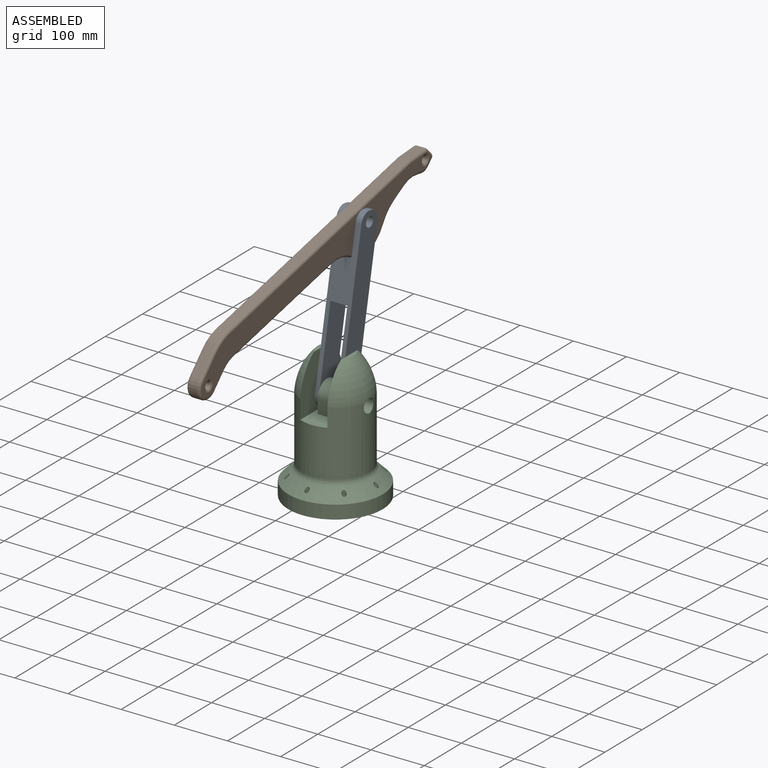
[diagram: assembled view]
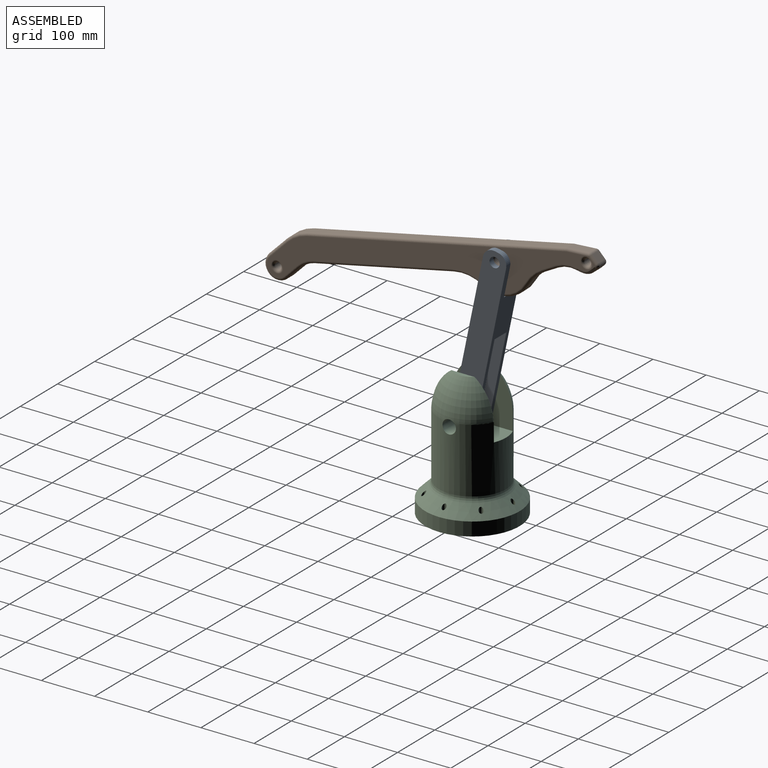
[diagram: assembled view, second angle]
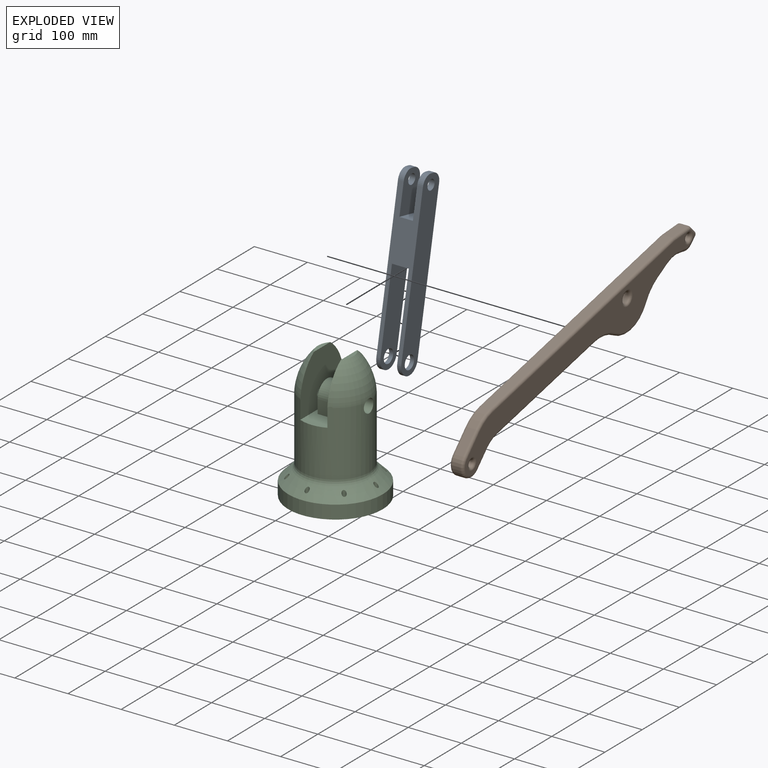
[diagram: exploded view]
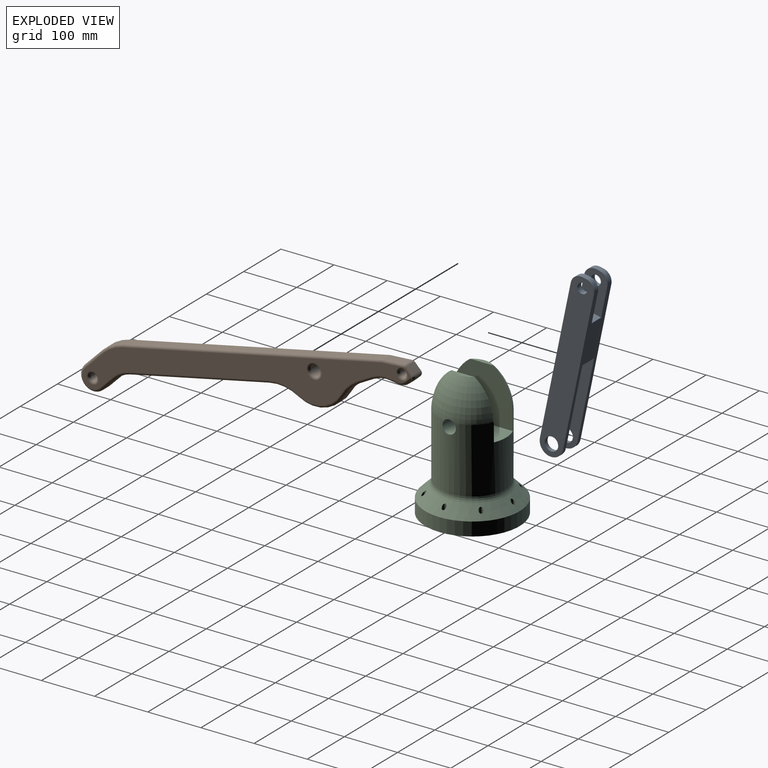
[diagram: exploded view, second angle]
ASSEMBLY  parts=3 mates=3
PART A: 22 faces, bbox 44.5x47x327 mm
  f0: plane 285.75x46.99mm, normal (1,0,0), area 7137.1mm2, adj f3,f6,f7,f8,f9,f11,f12,f13
  f1: plane 10.8x6.35mm, normal (0,0,1), area 68.5mm2, adj f11,f15,f16,f17
  f2: plane 285.75x46.99mm, normal (-1,0,0), area 7137.1mm2, adj f3,f6,f7,f8,f9,f11,f12,f13
  f3: cylinder r=22.23mm len=44.45mm, axis (0,1,0), area 532mm2, adj f0,f2,f6,f7
  f4: cylinder r=12.7mm len=25.4mm, axis (0,1,0), area 608mm2, adj f6,f7
  f5: plane 10.8x6.35mm, normal (0,0,1), area 68.5mm2, adj f6,f13,f18,f19
  f6: plane 327.03x44.45mm, normal (0,-1,0), area 13376.8mm2, adj f0,f2,f3,f4,f5,f18,f19,f21
  f7: plane 174.63x44.45mm, normal (0,1,0), area 7043.4mm2, adj f0,f2,f3,f4,f12
  f8: plane 174.63x44.45mm, normal (0,-1,0), area 7043.4mm2, adj f0,f2,f9,f10,f12
  f9: cylinder r=22.23mm len=44.45mm, axis (0,-1,0), area 532mm2, adj f0,f2,f8,f11
  f10: cylinder r=12.7mm len=25.4mm, axis (0,-1,0), area 608mm2, adj f8,f11
  f11: plane 327.03x44.45mm, normal (0,1,0), area 13376.8mm2, adj f0,f1,f2,f9,f10,f16,f17,f20
  f12: plane 44.45x31.75mm, normal (0,0,-1), area 1411.3mm2, adj f0,f2,f7,f8
  f13: plane 76.2x44.45mm, normal (0,1,0), area 2946.3mm2, adj f0,f2,f5,f14,f18,f19,f21
  f14: plane 44.45x25.4mm, normal (0,0,1), area 1129mm2, adj f0,f2,f13,f15
  f15: plane 76.2x44.45mm, normal (0,-1,0), area 2946.3mm2, adj f0,f1,f2,f14,f16,f17,f20
  f16: cylinder r=19.05mm len=19.05mm, axis (0,1,0), area 323mm2, adj f1,f2,f11,f15
  f17: cylinder r=19.05mm len=19.05mm, axis (0,-1,0), area 323mm2, adj f0,f1,f11,f15
  f18: cylinder r=19.05mm len=19.05mm, axis (0,-1,0), area 323mm2, adj f0,f5,f6,f13
  f19: cylinder r=19.05mm len=19.05mm, axis (0,1,0), area 323mm2, adj f2,f5,f6,f13
  f20: cylinder r=9.53mm len=19.05mm, axis (0,-1,0), area 646.1mm2, adj f11,f15
  f21: cylinder r=9.53mm len=19.05mm, axis (0,-1,0), area 646.1mm2, adj f6,f13
PART B: 62 faces, bbox 592.6x25.4x320.6 mm
  f0: plane 30.37x19.76mm, normal (-0.84,0,-0.55), area 552.2mm2, adj f1,f19,f30,f53
  f1: cylinder r=24.13mm len=44.36mm, axis (0,1,0), area 1155.3mm2, adj f0,f2,f33,f51
  f2: plane 39.97x26.01mm, normal (0.84,0,0.55), area 726.7mm2, adj f1,f3,f35,f49
  f3: cylinder r=76.2mm len=33.12mm, axis (0,1,0), area 671.8mm2, adj f2,f4,f37,f47
  f4: plane 456.78x201.48mm, normal (0.4,0,0.91), area 7608.4mm2, adj f3,f39,f41,f45
  f5: plane 40.3x15.24mm, normal (0.27,0,0.96), area 637.8mm2, adj f6,f38,f41,f42
  f6: cylinder r=6.35mm len=15.24mm, axis (0,1,0), area 83.4mm2, adj f5,f7,f36,f44
  f7: plane 15.24x14.12mm, normal (-0.56,0,0.83), area 258.7mm2, adj f6,f8,f34,f46
  f8: cylinder r=6.35mm len=15.24mm, axis (0,1,0), area 153.8mm2, adj f7,f9,f31,f48
  f9: extruded ~35.42x21.03mm, area 675.8mm2, adj f8,f10,f29,f50
  f10: cylinder r=50.8mm len=34.4mm, axis (0,1,0), area 568.4mm2, adj f9,f11,f27,f52
  f11: plane 22.62x19.26mm, normal (-0.65,0,-0.76), area 452.8mm2, adj f10,f12,f25,f54
  f12: cylinder r=76.2mm len=35.86mm, axis (0,1,0), area 662.5mm2, adj f11,f13,f23,f56
  f13: cylinder r=61.21mm len=78.37mm, axis (0,1,0), area 1497.4mm2, adj f12,f14,f22,f58
  f14: cylinder r=76.2mm len=55.41mm, axis (0,1,0), area 865.2mm2, adj f13,f15,f24,f59
  f15: plane 245.89x108.46mm, normal (-0.4,0,-0.91), area 4095.7mm2, adj f14,f19,f26,f57
  f16: cylinder r=6.35mm len=20.32mm, axis (0,1,0), area 810.7mm2, adj f20,f61
  f17: cylinder r=9.53mm len=20.32mm, axis (0,1,0), area 1216.1mm2, adj f20,f60
  f18: cylinder r=6.35mm len=20.32mm, axis (0,1,0), area 810.7mm2, adj f20,f32
  f19: cylinder r=50.8mm len=22.08mm, axis (0,1,0), area 447.9mm2, adj f0,f15,f28,f55
  f20: plane 572.81x308.5mm, normal (0,-1,0), area 26646.9mm2, adj f16,f17,f18,f42,f44,f45,f46,f47
  f21: plane 572.81x308.5mm, normal (0,1,0), area 25694.3mm2, adj f22,f23,f24,f25,f26,f27,f28,f29
  f22: torus R=56.13mm, axis (0,-1,0), area 760.4mm2, adj f13,f21,f23,f24
  f23: torus R=81.28mm, axis (0,-1,0), area 355.3mm2, adj f12,f21,f22,f25
  f24: torus R=81.28mm, axis (0,-1,0), area 464mm2, adj f14,f21,f22,f26
  f25: cylinder r=5.08mm len=25.92mm, axis (0.76,0,-0.65), area 237.1mm2, adj f11,f21,f23,f27
  f26: cylinder r=5.08mm len=247.94mm, axis (0.91,0,-0.4), area 2144.5mm2, adj f15,f21,f24,f28
  f27: torus R=55.88mm, axis (0,-1,0), area 308.4mm2, adj f10,f21,f25,f29
  f28: torus R=55.88mm, axis (0,-1,0), area 243mm2, adj f19,f21,f26,f30
  f29: bspline ~55.53x36.62mm, area 339.2mm2, adj f9,f21,f27,f31
  f30: cylinder r=5.08mm len=33.14mm, axis (0.55,0,-0.84), area 289.1mm2, adj f0,f21,f28,f33
  f31: torus R=1.27mm, axis (0,-1,0), area 57.1mm2, adj f8,f21,f29,f34
  f32: torus R=11.43mm, axis (0,-1,0), area 410.9mm2, adj f18,f21,f34
  f33: torus R=19.05mm, axis (0,-1,0), area 558.6mm2, adj f1,f21,f30,f35
  f34: cylinder r=5.08mm len=16.94mm, axis (-0.83,0,-0.56), area 135.4mm2, adj f7,f21,f31,f32,f36
  f35: cylinder r=5.08mm len=42.74mm, axis (-0.55,0,0.84), area 380.5mm2, adj f2,f21,f33,f37
  f36: torus R=1.27mm, axis (0,-1,0), area 31mm2, adj f6,f21,f34,f38
  f37: torus R=71.12mm, axis (0,-1,0), area 343.2mm2, adj f3,f21,f35,f39
  f38: cylinder r=5.08mm len=41.67mm, axis (-0.96,0,0.27), area 334mm2, adj f5,f21,f36,f40
  f39: cylinder r=5.08mm len=458.83mm, axis (-0.91,0,0.4), area 3983.8mm2, adj f4,f21,f37,f40
  f40: sphere r=5.08mm, area 3.7mm2, adj f38,f39,f41
  f41: cylinder r=5.08mm len=15.24mm, axis (0,1,0), area 11mm2, adj f4,f5,f40,f43
  f42: cylinder r=5.08mm len=41.67mm, axis (0.96,0,-0.27), area 334mm2, adj f5,f20,f43,f44
  f43: sphere r=5.08mm, area 3.7mm2, adj f41,f42,f45
  f44: torus R=1.27mm, axis (0,-1,0), area 31mm2, adj f6,f20,f42,f46
  f45: cylinder r=5.08mm len=458.83mm, axis (0.91,0,-0.4), area 3983.8mm2, adj f4,f20,f43,f47
  f46: cylinder r=5.08mm len=16.94mm, axis (0.83,0,0.56), area 135.4mm2, adj f7,f20,f44,f48
  f47: torus R=71.12mm, axis (0,-1,0), area 343.2mm2, adj f3,f20,f45,f49
  f48: torus R=1.27mm, axis (0,-1,0), area 57.1mm2, adj f8,f20,f46,f50
  f49: cylinder r=5.08mm len=42.74mm, axis (0.55,0,-0.84), area 380.5mm2, adj f2,f20,f47,f51
  f50: bspline ~55.53x36.62mm, area 339.2mm2, adj f9,f20,f48,f52
  f51: torus R=19.05mm, axis (0,-1,0), area 558.6mm2, adj f1,f20,f49,f53
  f52: torus R=55.88mm, axis (0,-1,0), area 308.4mm2, adj f10,f20,f50,f54
  f53: cylinder r=5.08mm len=33.14mm, axis (-0.55,0,0.84), area 289.1mm2, adj f0,f20,f51,f55
  f54: cylinder r=5.08mm len=25.92mm, axis (-0.76,0,0.65), area 237.1mm2, adj f11,f20,f52,f56
  f55: torus R=55.88mm, axis (0,-1,0), area 243mm2, adj f19,f20,f53,f57
  f56: torus R=81.28mm, axis (0,-1,0), area 355.3mm2, adj f12,f20,f54,f58
  f57: cylinder r=5.08mm len=247.94mm, axis (-0.91,0,0.4), area 2144.5mm2, adj f15,f20,f55,f59
  f58: torus R=56.13mm, axis (0,-1,0), area 760.4mm2, adj f13,f20,f56,f59
  f59: torus R=81.28mm, axis (0,-1,0), area 464mm2, adj f14,f20,f57,f58
  f60: torus R=14.61mm, axis (0,-1,0), area 570.1mm2, adj f17,f21
  f61: torus R=11.43mm, axis (0,-1,0), area 410.9mm2, adj f16,f21
PART C: 32 faces, bbox 177.8x177.8x245.3 mm
  f0: revolved ~116.4x67.52mm, area 8377.2mm2, adj f1,f3,f19,f29
  f1: cylinder r=63.5mm len=127mm, axis (0,0,-1), area 44093.6mm2, adj f0,f2,f15,f17,f18,f19,f29,f30
  f2: revolved ~116.4x67.52mm, area 8377.2mm2, adj f1,f16,f18,f30
  f3: plane 43.79x8.13mm, normal (0,0,1), area 243.9mm2, adj f0,f19
  f4: cylinder r=4.01mm len=42.11mm, axis (0,0,-1), area 957.9mm2, adj f13,f14
  f5: cylinder r=4.01mm len=42.11mm, axis (0,0,-1), area 957.9mm2, adj f13,f14
  f6: cylinder r=4.01mm len=42.11mm, axis (0,0,-1), area 957.9mm2, adj f13,f14
  f7: cylinder r=4.01mm len=42.11mm, axis (0,0,-1), area 957.8mm2, adj f13,f14
  f8: cylinder r=4.01mm len=42.11mm, axis (0,0,-1), area 957.8mm2, adj f13,f14
  f9: cylinder r=4.01mm len=42.11mm, axis (0,0,-1), area 957.9mm2, adj f13,f14
  f10: cylinder r=4.01mm len=42.11mm, axis (0,0,-1), area 957.8mm2, adj f13,f14
  f11: cylinder r=4.01mm len=42.11mm, axis (0,0,-1), area 957.8mm2, adj f13,f14
  f12: cylinder r=88.9mm len=177.8mm, axis (0,0,-1), area 14187.8mm2, adj f13,f14
  f13: plane 177.8x177.8mm, normal (0,0,-1), area 16317.8mm2, adj f4,f5,f6,f7,f8,f9,f10,f11
  f14: cone r=63.5mm half-angle=45deg, axis (0,0,-1), area 14463.4mm2, adj f4,f5,f6,f7,f8,f9,f10,f11
  f15: torus R=76.2mm, axis (0,0,1), area 4059mm2, adj f1,f14
  f16: plane 43.79x8.13mm, normal (0,0,1), area 243.9mm2, adj f2,f18
  f17: plane 127x50.8mm, normal (0,0,1), area 4662.3mm2, adj f1,f18,f19,f24,f25,f26,f27
  f18: plane 116.43x101.62mm, normal (1,0,0), area 9760.2mm2, adj f1,f2,f16,f17,f30
  f19: plane 116.43x101.62mm, normal (-1,0,0), area 9760.2mm2, adj f0,f1,f3,f17,f29
  f20: cylinder r=50.8mm len=101.6mm, axis (0,0,-1), area 8107.3mm2, adj f13,f21
  f21: plane 101.6x101.6mm, normal (0,0,-1), area 7600.6mm2, adj f20,f22
  f22: cylinder r=12.7mm len=118.32mm, axis (0,0,-1), area 9441.4mm2, adj f21,f23
  f23: plane 25.4x25.4mm, normal (0,0,-1), area 506.7mm2, adj f22
  f24: plane 31.75x25.4mm, normal (0,-1,0), area 806.5mm2, adj f17,f25,f27,f31
  f25: plane 50.8x50.8mm, normal (1,0,0), area 1797mm2, adj f17,f24,f26,f28,f31
  f26: plane 31.75x25.4mm, normal (0,1,0), area 806.5mm2, adj f17,f25,f27,f31
  f27: plane 50.8x50.8mm, normal (-1,0,0), area 1797mm2, adj f17,f24,f26,f28,f31
  f28: cylinder r=12.7mm len=31.75mm, axis (-1,0,0), area 2533.5mm2, adj f25,f27
  f29: cylinder r=12.7mm len=38.1mm, axis (-1,0,0), area 2985.7mm2, adj f0,f1,f19
  f30: cylinder r=12.7mm len=38.1mm, axis (-1,0,0), area 2985.7mm2, adj f1,f2,f18
  f31: cylinder r=25.4mm len=50.8mm, axis (-1,0,0), area 2533.5mm2, adj f24,f25,f26,f27
PLACE A rot(axis=(-0.1,0.1,0.99),90.6deg) t=(-161.98,107.27,299.05)mm
PLACE B rot(axis=(-0.1,-0.1,-0.99),90.6deg) t=(-149.28,50.59,543.39)mm
PLACE C t=(-161.98,107.26,129.92)mm fixed
MATE cylindrical C.f28 <-> A.f4  axis (1,0,0) through (-146.11,107.26,299.03)mm
MATE cylindrical B.f13 <-> A.f20  axis (1,0,0) through (-149.28,165.32,578.85)mm
MATE planar C.f28 <-> A.f4  axis (-1,0,0) through (-177.86,107.26,299.03)mm
